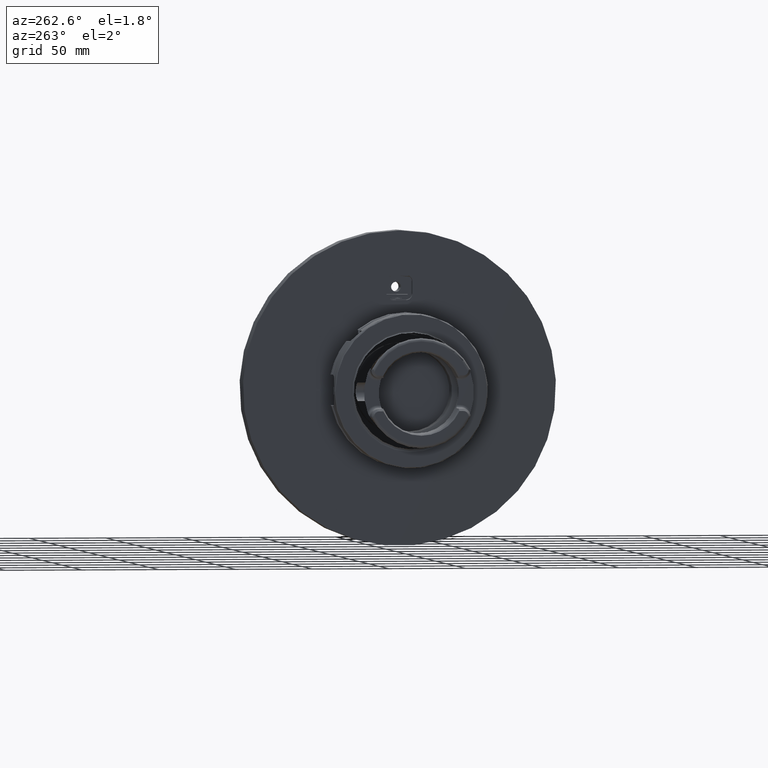
[diagram: clean part render]
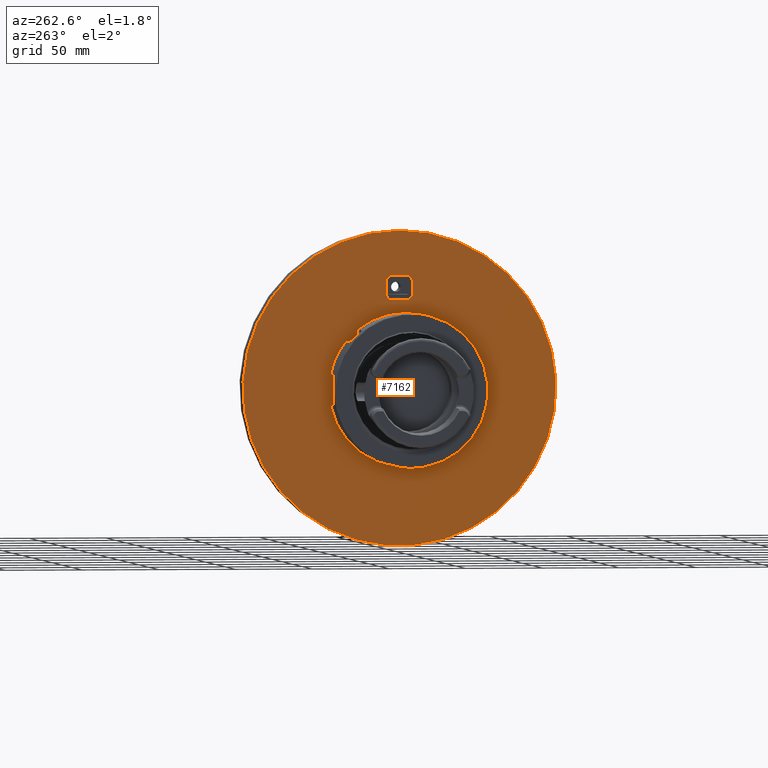
[diagram: same view with one face highlighted and labeled with its STEP entity id]
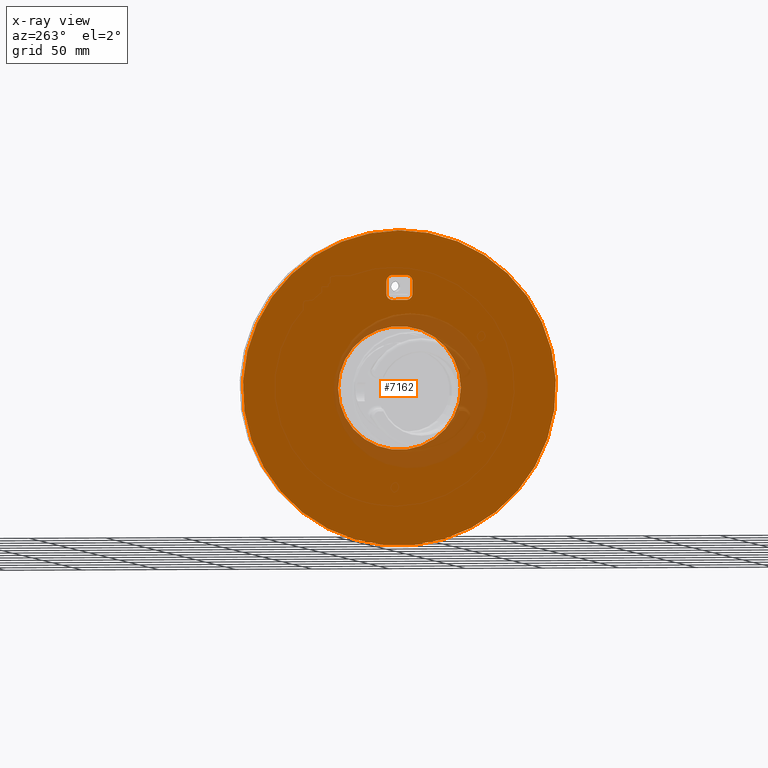
[diagram: x-ray of the same camera — body ghosted, the highlighted face saturated]
A machine part, auxiliary view. The second image highlights one B-rep face of the part: STEP entity #7162.
The next image is the same camera in x-ray: the body ghosted, the highlighted face saturated — about 11% of this face is hidden behind the body in this view.
In plain terms, the highlighted planar face has unit normal (-1, 0, 0).
Its self-contained STEP definition (entity closure, byte-faithful):
#148=FACE_BOUND('',#2328,.T.);
#149=FACE_BOUND('',#2329,.T.);
#791=LINE('',#13476,#1205);
#792=LINE('',#13480,#1206);
#793=LINE('',#13484,#1207);
#794=LINE('',#13488,#1208);
#1205=VECTOR('',#10086,8.);
#1206=VECTOR('',#10089,9.);
#1207=VECTOR('',#10092,8.);
#1208=VECTOR('',#10095,9.);
#1405=PLANE('',#8040);
#1825=FACE_OUTER_BOUND('',#2327,.T.);
#2327=EDGE_LOOP('',(#6558));
#2328=EDGE_LOOP('',(#6559,#6560,#6561,#6562,#6563,#6564,#6565,#6566));
#2329=EDGE_LOOP('',(#6567));
#2815=CIRCLE('',#8039,102.);
#2816=CIRCLE('',#8041,4.);
#2817=CIRCLE('',#8042,4.);
#2818=CIRCLE('',#8043,4.);
#2819=CIRCLE('',#8044,4.);
#2820=CIRCLE('',#8045,40.);
#3488=VERTEX_POINT('',#13470);
#3489=VERTEX_POINT('',#13474);
#3490=VERTEX_POINT('',#13475);
#3491=VERTEX_POINT('',#13477);
#3492=VERTEX_POINT('',#13479);
#3493=VERTEX_POINT('',#13481);
#3494=VERTEX_POINT('',#13483);
#3495=VERTEX_POINT('',#13485);
#3496=VERTEX_POINT('',#13487);
#3497=VERTEX_POINT('',#13490);
#4516=EDGE_CURVE('',#3488,#3488,#2815,.T.);
#4518=EDGE_CURVE('',#3489,#3490,#791,.T.);
#4519=EDGE_CURVE('',#3489,#3491,#2816,.T.);
#4520=EDGE_CURVE('',#3492,#3491,#792,.T.);
#4521=EDGE_CURVE('',#3492,#3493,#2817,.T.);
#4522=EDGE_CURVE('',#3494,#3493,#793,.T.);
#4523=EDGE_CURVE('',#3494,#3495,#2818,.T.);
#4524=EDGE_CURVE('',#3496,#3495,#794,.T.);
#4525=EDGE_CURVE('',#3496,#3490,#2819,.T.);
#4526=EDGE_CURVE('',#3497,#3497,#2820,.T.);
#6558=ORIENTED_EDGE('',*,*,#4516,.F.);
#6559=ORIENTED_EDGE('',*,*,#4518,.F.);
#6560=ORIENTED_EDGE('',*,*,#4519,.T.);
#6561=ORIENTED_EDGE('',*,*,#4520,.F.);
#6562=ORIENTED_EDGE('',*,*,#4521,.T.);
#6563=ORIENTED_EDGE('',*,*,#4522,.F.);
#6564=ORIENTED_EDGE('',*,*,#4523,.T.);
#6565=ORIENTED_EDGE('',*,*,#4524,.F.);
#6566=ORIENTED_EDGE('',*,*,#4525,.T.);
#6567=ORIENTED_EDGE('',*,*,#4526,.T.);
#7162=ADVANCED_FACE('',(#1825,#148,#149),#1405,.T.);
#8039=AXIS2_PLACEMENT_3D('',#13471,#10081,#10082);
#8040=AXIS2_PLACEMENT_3D('',#13473,#10084,#10085);
#8041=AXIS2_PLACEMENT_3D('',#13478,#10087,#10088);
#8042=AXIS2_PLACEMENT_3D('',#13482,#10090,#10091);
#8043=AXIS2_PLACEMENT_3D('',#13486,#10093,#10094);
#8044=AXIS2_PLACEMENT_3D('',#13489,#10096,#10097);
#8045=AXIS2_PLACEMENT_3D('',#13491,#10098,#10099);
#10081=DIRECTION('center_axis',(1.,0.,0.));
#10082=DIRECTION('ref_axis',(0.,1.,0.));
#10084=DIRECTION('center_axis',(-1.,0.,0.));
#10085=DIRECTION('ref_axis',(0.,0.,1.));
#10086=DIRECTION('',(0.,1.,0.));
#10087=DIRECTION('center_axis',(1.,0.,0.));
#10088=DIRECTION('ref_axis',(0.,0.,1.));
#10089=DIRECTION('',(0.,0.,1.));
#10090=DIRECTION('center_axis',(1.,0.,0.));
#10091=DIRECTION('ref_axis',(0.,-1.,0.));
#10092=DIRECTION('',(0.,-1.,0.));
#10093=DIRECTION('center_axis',(1.,0.,0.));
#10094=DIRECTION('ref_axis',(0.,0.,-1.));
#10095=DIRECTION('',(0.,0.,-1.));
#10096=DIRECTION('center_axis',(1.,0.,0.));
#10097=DIRECTION('ref_axis',(0.,1.,0.));
#10098=DIRECTION('center_axis',(1.,0.,0.));
#10099=DIRECTION('ref_axis',(0.,0.,1.));
#13470=CARTESIAN_POINT('',(-28.5,-102.,-1.50990331349E-14));
#13471=CARTESIAN_POINT('Origin',(-28.5,0.,0.));
#13473=CARTESIAN_POINT('Origin',(-28.5,43.625,0.));
#13474=CARTESIAN_POINT('',(-28.5,-69.,8.5));
#13475=CARTESIAN_POINT('',(-28.5,-61.,8.5));
#13476=CARTESIAN_POINT('',(-28.5,-69.,8.5));
#13477=CARTESIAN_POINT('',(-28.5,-73.,4.5));
#13478=CARTESIAN_POINT('Origin',(-28.5,-69.,4.5));
#13479=CARTESIAN_POINT('',(-28.5,-73.,-4.5));
#13480=CARTESIAN_POINT('',(-28.5,-73.,-4.5));
#13481=CARTESIAN_POINT('',(-28.5,-69.,-8.5));
#13482=CARTESIAN_POINT('Origin',(-28.5,-69.,-4.5));
#13483=CARTESIAN_POINT('',(-28.5,-61.,-8.5));
#13484=CARTESIAN_POINT('',(-28.5,-61.,-8.5));
#13485=CARTESIAN_POINT('',(-28.5,-57.,-4.5));
#13486=CARTESIAN_POINT('Origin',(-28.5,-61.,-4.5));
#13487=CARTESIAN_POINT('',(-28.5,-57.,4.5));
#13488=CARTESIAN_POINT('',(-28.5,-57.,4.5));
#13489=CARTESIAN_POINT('Origin',(-28.5,-61.,4.5));
#13490=CARTESIAN_POINT('',(-28.5,0.,-40.));
#13491=CARTESIAN_POINT('Origin',(-28.5,0.,0.));